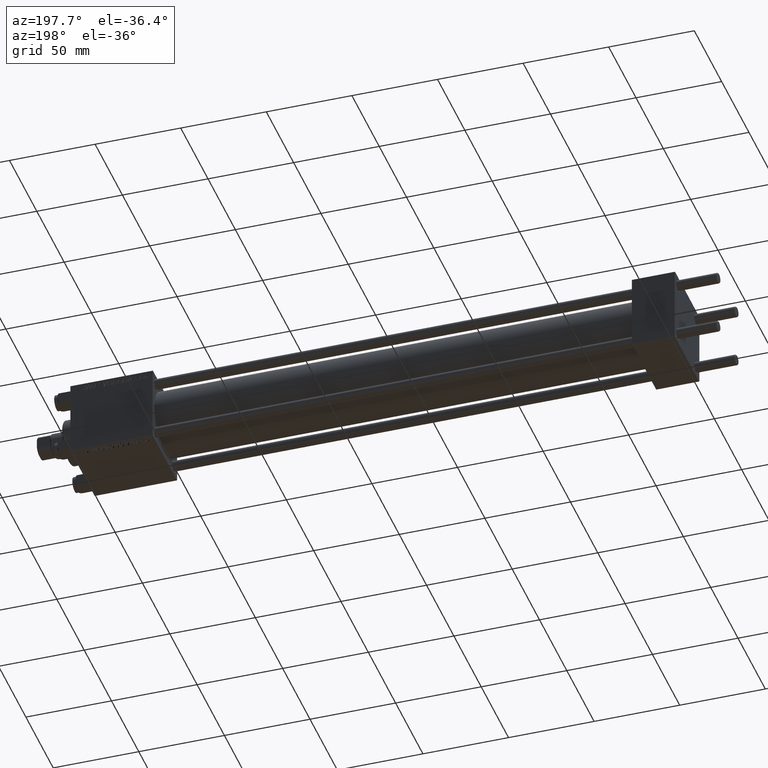
[diagram: clean part render]
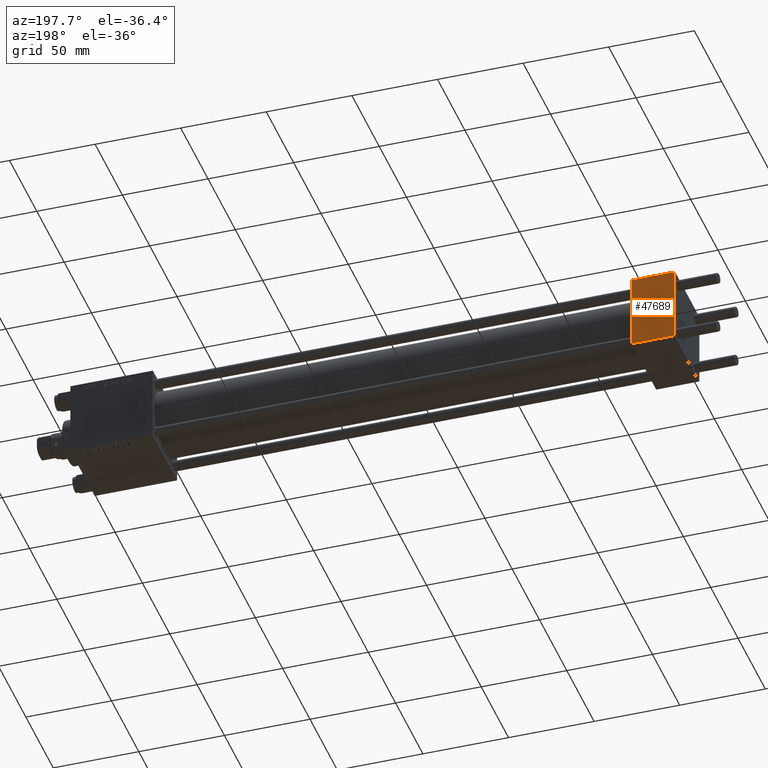
[diagram: same view with one face highlighted and labeled with its STEP entity id]
A machine part, auxiliary view. The second image highlights one B-rep face of the part: STEP entity #47689.
In plain terms, the highlighted planar face has unit normal (0, 1, 0).
Its self-contained STEP definition (entity closure, byte-faithful):
#456 = CARTESIAN_POINT ( 'NONE',  ( 0.000000000000000000, 22.50000000000000000, 22.50000000000000355 ) ) ;
#1063 = VERTEX_POINT ( 'NONE', #44352 ) ;
#1775 = LINE ( 'NONE', #28279, #15584 ) ;
#2132 = DIRECTION ( 'NONE',  ( 0.000000000000000000, -0.000000000000000000, 1.000000000000000000 ) ) ;
#5571 = DIRECTION ( 'NONE',  ( 1.000000000000000000, 0.000000000000000000, 0.000000000000000000 ) ) ;
#5932 = PLANE ( 'NONE',  #38150 ) ;
#6701 = EDGE_CURVE ( 'NONE', #1063, #49795, #19531, .T. ) ;
#7005 = EDGE_CURVE ( 'NONE', #18363, #32792, #1775, .T. ) ;
#8020 = DIRECTION ( 'NONE',  ( 0.000000000000000000, 0.000000000000000000, -1.000000000000000000 ) ) ;
#9089 = LINE ( 'NONE', #31807, #38002 ) ;
#11568 = LINE ( 'NONE', #456, #38075 ) ;
#11714 = DIRECTION ( 'NONE',  ( -1.000000000000000000, 0.000000000000000000, 0.000000000000000000 ) ) ;
#12637 = DIRECTION ( 'NONE',  ( 0.000000000000000000, 0.000000000000000000, -1.000000000000000000 ) ) ;
#15584 = VECTOR ( 'NONE', #5571, 1000.000000000000000 ) ;
#18363 = VERTEX_POINT ( 'NONE', #38077 ) ;
#19277 = CARTESIAN_POINT ( 'NONE',  ( 25.00000000000000000, 22.50000000000000000, -21.99999999999998224 ) ) ;
#19531 = LINE ( 'NONE', #19277, #32483 ) ;
#21334 = CARTESIAN_POINT ( 'NONE',  ( 25.00000000000000000, 22.50000000000000000, 22.50000000000000355 ) ) ;
#25595 = FACE_OUTER_BOUND ( 'NONE', #38584, .T. ) ;
#28279 = CARTESIAN_POINT ( 'NONE',  ( 25.00000000000000000, 22.50000000000000000, 21.99999999999999645 ) ) ;
#31772 = ORIENTED_EDGE ( 'NONE', *, *, #45529, .F. ) ;
#31807 = CARTESIAN_POINT ( 'NONE',  ( 25.00000000000000000, 22.50000000000000000, 22.50000000000000355 ) ) ;
#32483 = VECTOR ( 'NONE', #11714, 1000.000000000000000 ) ;
#32792 = VERTEX_POINT ( 'NONE', #49101 ) ;
#34237 = CARTESIAN_POINT ( 'NONE',  ( 0.000000000000000000, 22.50000000000000000, -21.99999999999996803 ) ) ;
#36709 = DIRECTION ( 'NONE',  ( -0.000000000000000000, 1.000000000000000000, 0.000000000000000000 ) ) ;
#36963 = EDGE_CURVE ( 'NONE', #32792, #1063, #9089, .T. ) ;
#37189 = ORIENTED_EDGE ( 'NONE', *, *, #36963, .T. ) ;
#38002 = VECTOR ( 'NONE', #12637, 1000.000000000000000 ) ;
#38075 = VECTOR ( 'NONE', #8020, 1000.000000000000000 ) ;
#38077 = CARTESIAN_POINT ( 'NONE',  ( 0.000000000000000000, 22.50000000000000000, 21.99999999999999645 ) ) ;
#38150 = AXIS2_PLACEMENT_3D ( 'NONE', #21334, #36709, #2132 ) ;
#38584 = EDGE_LOOP ( 'NONE', ( #37189, #49107, #31772, #49268 ) ) ;
#44352 = CARTESIAN_POINT ( 'NONE',  ( 25.00000000000000000, 22.50000000000000000, -21.99999999999996803 ) ) ;
#45529 = EDGE_CURVE ( 'NONE', #18363, #49795, #11568, .T. ) ;
#47689 = ADVANCED_FACE ( 'NONE', ( #25595 ), #5932, .T. ) ;
#49101 = CARTESIAN_POINT ( 'NONE',  ( 25.00000000000000000, 22.50000000000000000, 21.99999999999999645 ) ) ;
#49107 = ORIENTED_EDGE ( 'NONE', *, *, #6701, .T. ) ;
#49268 = ORIENTED_EDGE ( 'NONE', *, *, #7005, .T. ) ;
#49795 = VERTEX_POINT ( 'NONE', #34237 ) ;